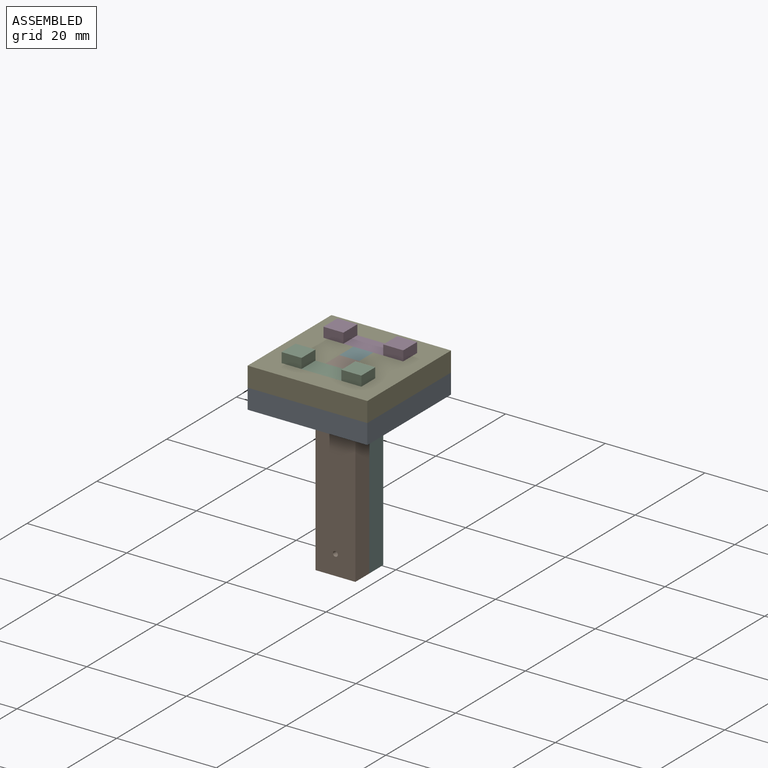
[diagram: assembled view]
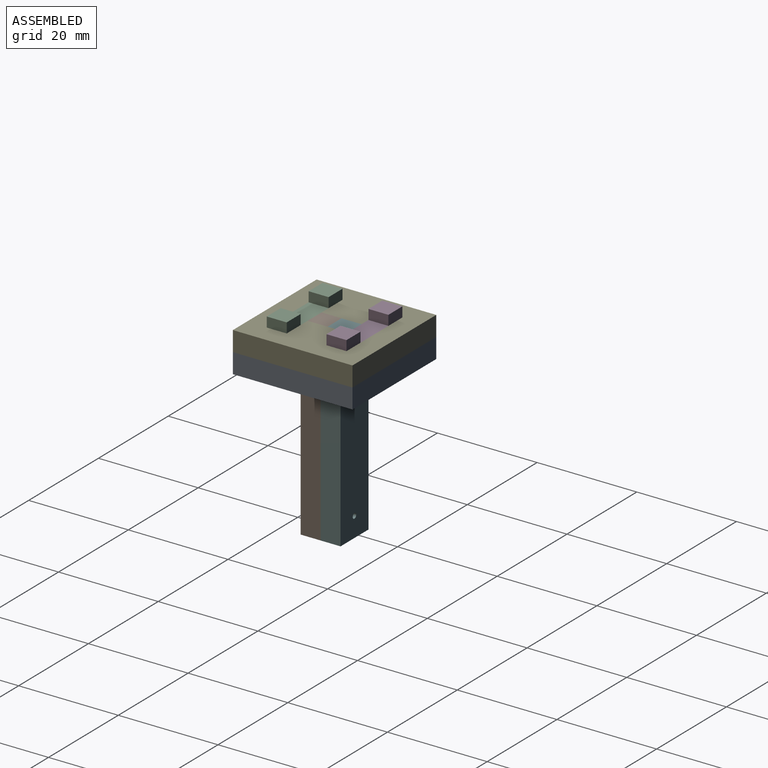
[diagram: assembled view, second angle]
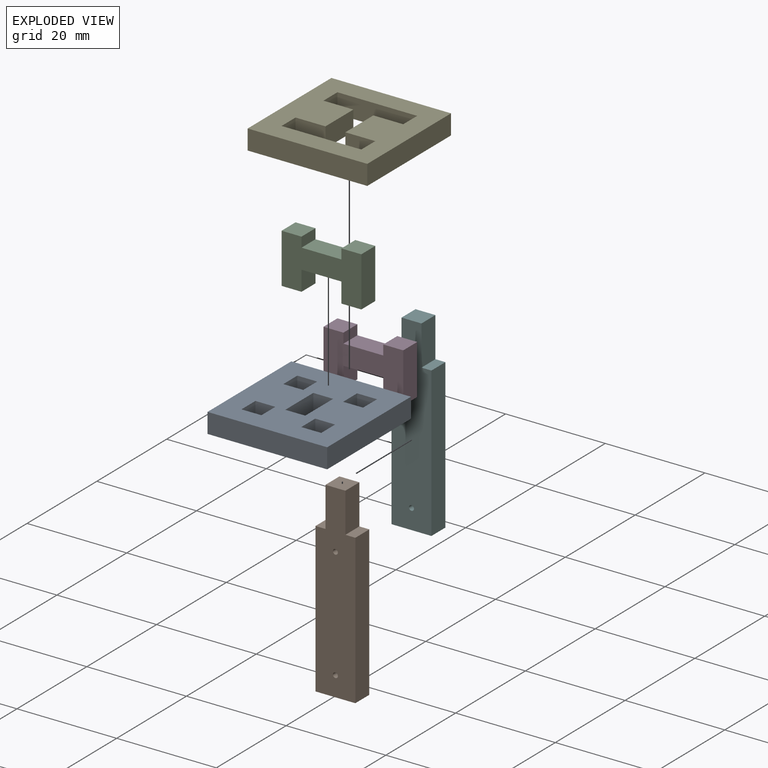
[diagram: exploded view]
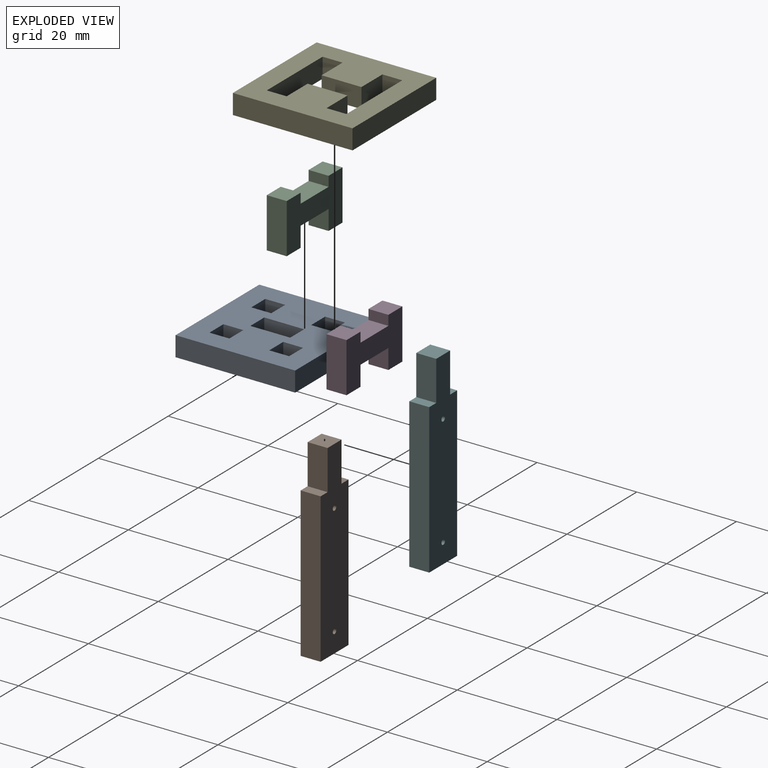
[diagram: exploded view, second angle]
ASSEMBLY  parts=6 mates=5
PART A: 26 faces, bbox 24x24x4 mm
  f0: plane 24x4mm, normal (0,1,0), area 96mm2, adj f1,f23,f24,f25
  f1: plane 24x4mm, normal (-1,0,0), area 96mm2, adj f0,f2,f24,f25
  f2: plane 24x4mm, normal (0,-1,0), area 96mm2, adj f1,f23,f24,f25
  f3: plane 8x4mm, normal (1,0,0), area 32mm2, adj f4,f18,f24,f25
  f4: plane 4x4mm, normal (0,-1,0), area 16mm2, adj f3,f5,f24,f25
  f5: plane 8x4mm, normal (-1,0,0), area 32mm2, adj f4,f18,f24,f25
  f6: plane 4x4mm, normal (1,0,0), area 16mm2, adj f7,f19,f24,f25
  f7: plane 4x4mm, normal (0,-1,0), area 16mm2, adj f6,f8,f24,f25
  f8: plane 4x4mm, normal (-1,0,0), area 16mm2, adj f7,f19,f24,f25
  f9: plane 4x4mm, normal (0,-1,0), area 16mm2, adj f10,f20,f24,f25
  f10: plane 4x4mm, normal (-1,0,0), area 16mm2, adj f9,f11,f24,f25
  f11: plane 4x4mm, normal (0,1,0), area 16mm2, adj f10,f20,f24,f25
  f12: plane 4x4mm, normal (-1,0,0), area 16mm2, adj f13,f21,f24,f25
  f13: plane 4x4mm, normal (0,1,0), area 16mm2, adj f12,f14,f24,f25
  f14: plane 4x4mm, normal (1,0,0), area 16mm2, adj f13,f21,f24,f25
  f15: plane 4x4mm, normal (0,1,0), area 16mm2, adj f16,f22,f24,f25
  f16: plane 4x4mm, normal (1,0,0), area 16mm2, adj f15,f17,f24,f25
  f17: plane 4x4mm, normal (0,-1,0), area 16mm2, adj f16,f22,f24,f25
  f18: plane 4x4mm, normal (0,1,0), area 16mm2, adj f3,f5,f24,f25
  f19: plane 4x4mm, normal (0,1,0), area 16mm2, adj f6,f8,f24,f25
  f20: plane 4x4mm, normal (1,0,0), area 16mm2, adj f9,f11,f24,f25
  f21: plane 4x4mm, normal (0,-1,0), area 16mm2, adj f12,f14,f24,f25
  f22: plane 4x4mm, normal (-1,0,0), area 16mm2, adj f15,f17,f24,f25
  f23: plane 24x4mm, normal (1,0,0), area 96mm2, adj f0,f2,f24,f25
  f24: plane 24x24mm, normal (0,0,-1), area 480mm2, adj f0,f1,f2,f3,f4,f5,f6,f7
  f25: plane 24x24mm, normal (0,0,1), area 480mm2, adj f0,f1,f2,f3,f4,f5,f6,f7
PART B: 12 faces, bbox 8x4x38 mm
  f0: plane 4x2mm, normal (0,0,1), area 8mm2, adj f1,f9,f10,f11
  f1: plane 30x4mm, normal (-1,0,0), area 120mm2, adj f0,f2,f10,f11
  f2: plane 8x4mm, normal (0,0,-1), area 32mm2, adj f1,f3,f10,f11
  f3: plane 30x4mm, normal (1,0,0), area 120mm2, adj f2,f4,f10,f11
  f4: plane 4x2mm, normal (0,0,1), area 8mm2, adj f3,f5,f10,f11
  f5: plane 8x4mm, normal (1,0,0), area 32mm2, adj f4,f6,f10,f11
  f6: plane 4x4mm, normal (0,0,1), area 16mm2, adj f5,f9,f10,f11
  f7: cylinder r=0.5mm len=4mm, axis (0,1,0), area 12.6mm2, adj f10,f11
  f8: cylinder r=0.5mm len=4mm, axis (0,1,0), area 12.6mm2, adj f10,f11
  f9: plane 8x4mm, normal (-1,0,0), area 32mm2, adj f0,f6,f10,f11
  f10: plane 38x8mm, normal (0,-1,0), area 270.4mm2, adj f0,f1,f2,f3,f4,f5,f6,f7
  f11: plane 38x8mm, normal (0,1,0), area 270.4mm2, adj f0,f1,f2,f3,f4,f5,f6,f7
PART C: 14 faces, bbox 4x16x10 mm
  f0: plane 10x4mm, normal (0,-1,0), area 40mm2, adj f1,f11,f12,f13
  f1: plane 4x4mm, normal (0,0,-1), area 16mm2, adj f0,f2,f12,f13
  f2: plane 4x4mm, normal (0,1,0), area 16mm2, adj f1,f3,f12,f13
  f3: plane 8x4mm, normal (0,0,-1), area 32mm2, adj f2,f4,f12,f13
  f4: plane 4x4mm, normal (0,-1,0), area 16mm2, adj f3,f5,f12,f13
  f5: plane 4x4mm, normal (0,0,-1), area 16mm2, adj f4,f6,f12,f13
  f6: plane 10x4mm, normal (0,1,0), area 40mm2, adj f5,f7,f12,f13
  f7: plane 4x4mm, normal (0,0,1), area 16mm2, adj f6,f8,f12,f13
  f8: plane 4x2mm, normal (0,-1,0), area 8mm2, adj f7,f9,f12,f13
  f9: plane 8x4mm, normal (0,0,1), area 32mm2, adj f8,f10,f12,f13
  f10: plane 4x2mm, normal (0,1,0), area 8mm2, adj f9,f11,f12,f13
  f11: plane 4x4mm, normal (0,0,1), area 16mm2, adj f0,f10,f12,f13
  f12: plane 16x10mm, normal (1,0,0), area 112mm2, adj f0,f1,f2,f3,f4,f5,f6,f7
  f13: plane 16x10mm, normal (-1,0,0), area 112mm2, adj f0,f1,f2,f3,f4,f5,f6,f7
PART D: same geometry as C
PART E: 18 faces, bbox 24x24x4 mm
  f0: plane 24x4mm, normal (0,-1,0), area 96mm2, adj f1,f15,f16,f17
  f1: plane 24x4mm, normal (1,0,0), area 96mm2, adj f0,f2,f16,f17
  f2: plane 24x4mm, normal (0,1,0), area 96mm2, adj f1,f15,f16,f17
  f3: plane 4x4mm, normal (-1,0,0), area 16mm2, adj f4,f14,f16,f17
  f4: plane 16x4mm, normal (0,1,0), area 64mm2, adj f3,f5,f16,f17
  f5: plane 4x4mm, normal (1,0,0), area 16mm2, adj f4,f6,f16,f17
  f6: plane 6x4mm, normal (0,-1,0), area 24mm2, adj f5,f7,f16,f17
  f7: plane 8x4mm, normal (1,0,0), area 32mm2, adj f6,f8,f16,f17
  f8: plane 6x4mm, normal (0,1,0), area 24mm2, adj f7,f9,f16,f17
  f9: plane 4x4mm, normal (1,0,0), area 16mm2, adj f8,f10,f16,f17
  f10: plane 16x4mm, normal (0,-1,0), area 64mm2, adj f9,f11,f16,f17
  f11: plane 4x4mm, normal (-1,0,0), area 16mm2, adj f10,f12,f16,f17
  f12: plane 6x4mm, normal (0,1,0), area 24mm2, adj f11,f13,f16,f17
  f13: plane 8x4mm, normal (-1,0,0), area 32mm2, adj f12,f14,f16,f17
  f14: plane 6x4mm, normal (0,-1,0), area 24mm2, adj f3,f13,f16,f17
  f15: plane 24x4mm, normal (-1,0,0), area 96mm2, adj f0,f2,f16,f17
  f16: plane 24x24mm, normal (0,0,1), area 416mm2, adj f0,f1,f2,f3,f4,f5,f6,f7
  f17: plane 24x24mm, normal (0,0,-1), area 416mm2, adj f0,f1,f2,f3,f4,f5,f6,f7
PART F: same geometry as B
PLACE A t=(7.04,-23.71,8.79)mm
PLACE B t=(7.04,-23.71,16.2)mm
PLACE C rot(axis=(0,0,-1),90deg) t=(-38.05,-27.71,0.37)mm
PLACE D rot(axis=(0,0,-1),90deg) t=(-38.05,-15.71,0.37)mm
PLACE E t=(7.04,-23.71,8.79)mm
PLACE F t=(7.04,-19.71,16.2)mm
MATE fastened D.f1 <-> A.f24  axis (0,0,-1) through (-46.71,-15.71,4.79)mm
MATE fastened C.f5 <-> A.f24  axis (0,0,-1) through (-30.71,-31.71,4.79)mm
MATE fastened E.f16 <-> B.f6  axis (0,0,1) through (-40.71,-27.71,12.79)mm
MATE fastened E.f0 <-> A.f2  axis (0,-1,0) through (-26.71,-35.71,8.79)mm
MATE fastened F.f10 <-> B.f11  axis (0,-1,0) through (-38.71,-23.71,-7.96)mm
